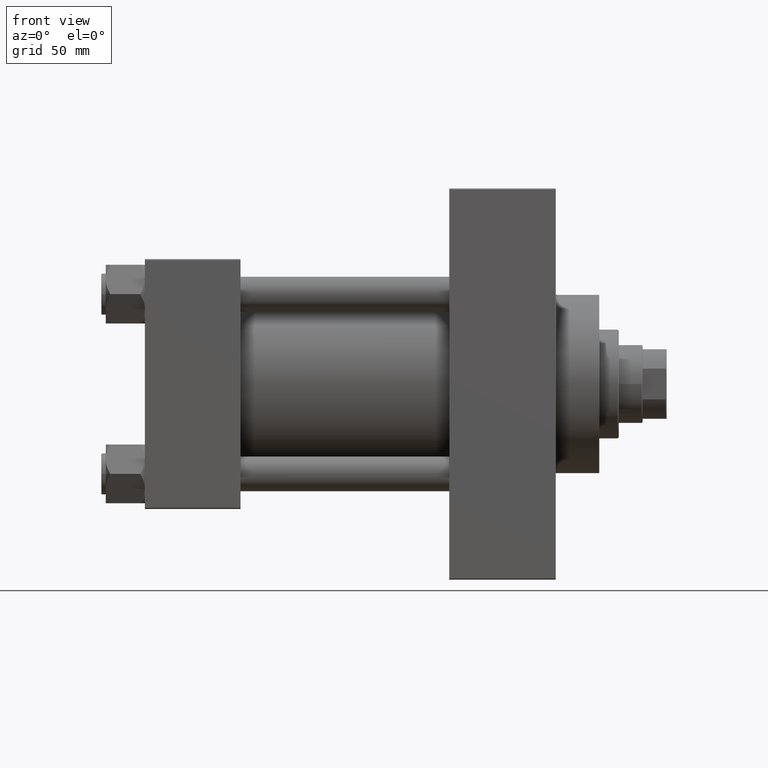
[diagram: clean part render]
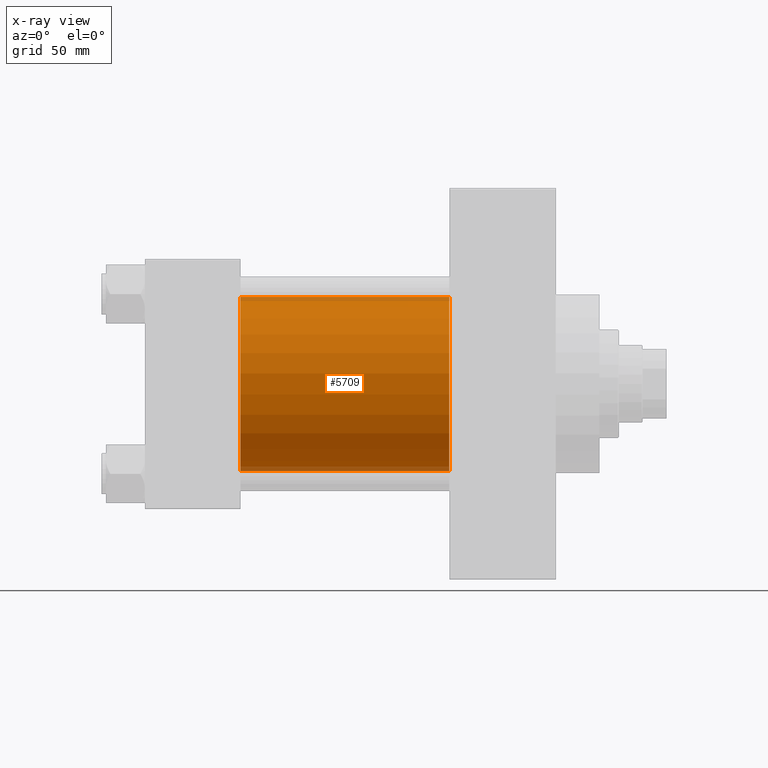
[diagram: x-ray — body ghosted, one internal face saturated and labeled with its STEP entity id]
A machine part, front view, then the same camera in x-ray: the body is ghosted and one INTERNAL B-rep face — a face not visible from any outside direction — is saturated and labeled: STEP entity #5709.
In plain terms, the highlighted cylindrical surface (partial cylindrical patch) has radius 40 mm, axis along (-1, -0, -0).
Its self-contained STEP definition (entity closure, byte-faithful):
#470 = DIRECTION ( 'NONE',  ( 1.000000000000000000, 0.000000000000000000, 0.000000000000000000 ) ) ;
#1216 = ORIENTED_EDGE ( 'NONE', *, *, #35533, .T. ) ;
#2577 = CARTESIAN_POINT ( 'NONE',  ( 44.00000000000000000, -2.602085213965210642E-15, 40.00000000000000000 ) ) ;
#2800 = CARTESIAN_POINT ( 'NONE',  ( 140.0000000000000000, 2.296501982624201990E-15, -40.00000000000000000 ) ) ;
#3040 = VERTEX_POINT ( 'NONE', #29966 ) ;
#4074 = EDGE_CURVE ( 'NONE', #25061, #3040, #7600, .T. ) ;
#4251 = FACE_OUTER_BOUND ( 'NONE', #44410, .T. ) ;
#5268 = CARTESIAN_POINT ( 'NONE',  ( 140.0000000000000000, -2.602085213965210642E-15, 40.00000000000000000 ) ) ;
#5709 = ADVANCED_FACE ( 'NONE', ( #4251 ), #32551, .F. ) ;
#6166 = DIRECTION ( 'NONE',  ( 0.000000000000000000, 0.000000000000000000, -1.000000000000000000 ) ) ;
#7600 = CIRCLE ( 'NONE', #13769, 40.00000000000000000 ) ;
#8113 = LINE ( 'NONE', #34146, #33639 ) ;
#9049 = AXIS2_PLACEMENT_3D ( 'NONE', #33996, #470, #25792 ) ;
#13769 = AXIS2_PLACEMENT_3D ( 'NONE', #38238, #27371, #6166 ) ;
#13996 = DIRECTION ( 'NONE',  ( -1.000000000000000000, -0.000000000000000000, -0.000000000000000000 ) ) ;
#16899 = AXIS2_PLACEMENT_3D ( 'NONE', #33671, #13996, #37286 ) ;
#17172 = VECTOR ( 'NONE', #21991, 1000.000000000000000 ) ;
#17838 = VERTEX_POINT ( 'NONE', #2800 ) ;
#18730 = EDGE_CURVE ( 'NONE', #23386, #25061, #32852, .T. ) ;
#21991 = DIRECTION ( 'NONE',  ( -1.000000000000000000, -0.000000000000000000, -0.000000000000000000 ) ) ;
#23386 = VERTEX_POINT ( 'NONE', #5268 ) ;
#25061 = VERTEX_POINT ( 'NONE', #2577 ) ;
#25792 = DIRECTION ( 'NONE',  ( 0.000000000000000000, 0.000000000000000000, -1.000000000000000000 ) ) ;
#25848 = ORIENTED_EDGE ( 'NONE', *, *, #18730, .F. ) ;
#27371 = DIRECTION ( 'NONE',  ( 1.000000000000000000, 0.000000000000000000, 0.000000000000000000 ) ) ;
#29794 = CIRCLE ( 'NONE', #9049, 40.00000000000000000 ) ;
#29966 = CARTESIAN_POINT ( 'NONE',  ( 44.00000000000000000, 2.296501982624201990E-15, -40.00000000000000000 ) ) ;
#30270 = EDGE_CURVE ( 'NONE', #17838, #3040, #8113, .T. ) ;
#32551 = CYLINDRICAL_SURFACE ( 'NONE', #16899, 40.00000000000000000 ) ;
#32852 = LINE ( 'NONE', #43919, #17172 ) ;
#33639 = VECTOR ( 'NONE', #34626, 1000.000000000000000 ) ;
#33671 = CARTESIAN_POINT ( 'NONE',  ( 140.0000000000000000, -2.602085213965210642E-15, 0.000000000000000000 ) ) ;
#33996 = CARTESIAN_POINT ( 'NONE',  ( 140.0000000000000000, -2.602085213965210642E-15, 0.000000000000000000 ) ) ;
#34146 = CARTESIAN_POINT ( 'NONE',  ( 140.0000000000000000, 2.296501982624201990E-15, -40.00000000000000000 ) ) ;
#34626 = DIRECTION ( 'NONE',  ( -1.000000000000000000, -0.000000000000000000, -0.000000000000000000 ) ) ;
#35533 = EDGE_CURVE ( 'NONE', #23386, #17838, #29794, .T. ) ;
#35825 = ORIENTED_EDGE ( 'NONE', *, *, #30270, .T. ) ;
#37286 = DIRECTION ( 'NONE',  ( 0.000000000000000000, 0.000000000000000000, 1.000000000000000000 ) ) ;
#38238 = CARTESIAN_POINT ( 'NONE',  ( 44.00000000000000000, -2.602085213965210642E-15, 0.000000000000000000 ) ) ;
#43919 = CARTESIAN_POINT ( 'NONE',  ( 140.0000000000000000, -2.602085213965210642E-15, 40.00000000000000000 ) ) ;
#44410 = EDGE_LOOP ( 'NONE', ( #1216, #35825, #45180, #25848 ) ) ;
#45180 = ORIENTED_EDGE ( 'NONE', *, *, #4074, .F. ) ;